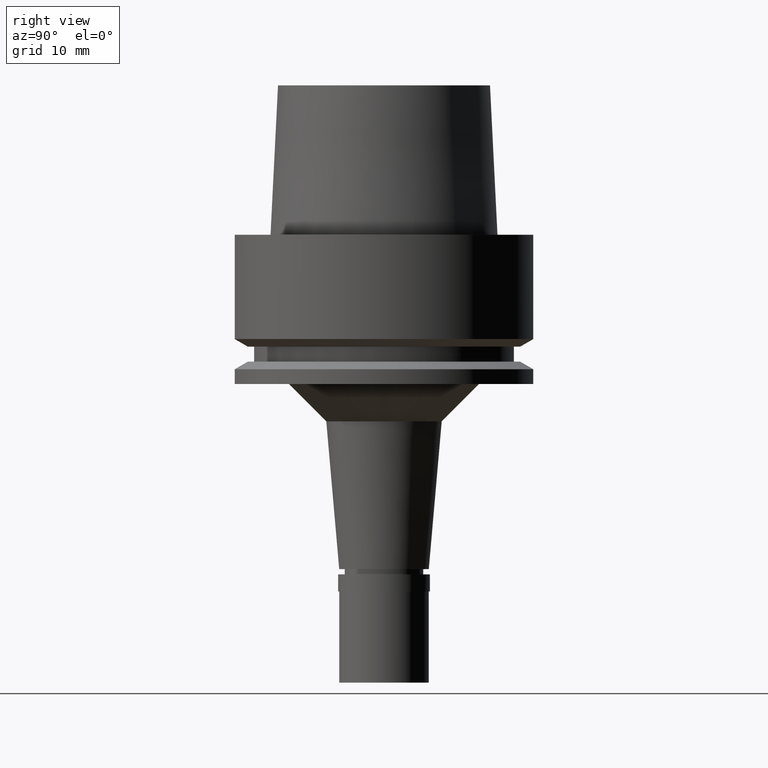
[diagram: clean part render]
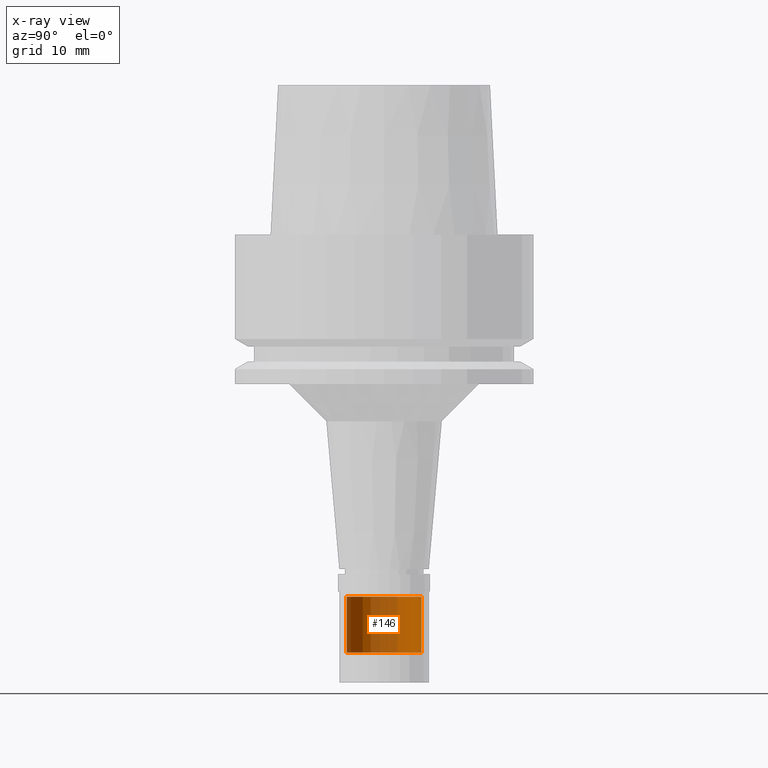
[diagram: x-ray — body ghosted, one internal face saturated and labeled with its STEP entity id]
A machine part, right view, then the same camera in x-ray: the body is ghosted and one INTERNAL B-rep face — a face not visible from any outside direction — is saturated and labeled: STEP entity #146.
In plain terms, the highlighted cylindrical surface (partial cylindrical patch) has radius 5 mm, axis along (0, 0, 1).
Its self-contained STEP definition (entity closure, byte-faithful):
#57 = AXIS2_PLACEMENT_3D ( 'NONE', #1792, #549, #1392 ) ;
#119 = CARTESIAN_POINT ( 'NONE',  ( 0.0000000000000000000, 5.000000000000000000, -48.50000000000000000 ) ) ;
#146 = ADVANCED_FACE ( 'NONE', ( #1336 ), #1731, .T. ) ;
#176 = ORIENTED_EDGE ( 'NONE', *, *, #395, .T. ) ;
#312 = CIRCLE ( 'NONE', #57, 5.000000000000000000 ) ;
#332 = VERTEX_POINT ( 'NONE', #119 ) ;
#395 = EDGE_CURVE ( 'NONE', #1087, #1296, #312, .T. ) ;
#413 = CIRCLE ( 'NONE', #1511, 5.000000000000000000 ) ;
#443 = EDGE_LOOP ( 'NONE', ( #176, #1972, #1769, #1007 ) ) ;
#473 = VERTEX_POINT ( 'NONE', #2471 ) ;
#549 = DIRECTION ( 'NONE',  ( 0.0000000000000000000, 0.0000000000000000000, 1.000000000000000000 ) ) ;
#580 = DIRECTION ( 'NONE',  ( 0.0000000000000000000, 0.0000000000000000000, -1.000000000000000000 ) ) ;
#772 = LINE ( 'NONE', #1212, #1416 ) ;
#782 = CARTESIAN_POINT ( 'NONE',  ( 0.0000000000000000000, 5.000000000000000000, -56.00000000000000000 ) ) ;
#987 = EDGE_CURVE ( 'NONE', #473, #1296, #1640, .T. ) ;
#990 = EDGE_CURVE ( 'NONE', #332, #1087, #772, .T. ) ;
#1007 = ORIENTED_EDGE ( 'NONE', *, *, #990, .T. ) ;
#1087 = VERTEX_POINT ( 'NONE', #782 ) ;
#1103 = CARTESIAN_POINT ( 'NONE',  ( 0.0000000000000000000, -5.000000000000000000, -56.00000000000000000 ) ) ;
#1212 = CARTESIAN_POINT ( 'NONE',  ( 0.0000000000000000000, 5.000000000000000000, -48.50000000000000000 ) ) ;
#1271 = DIRECTION ( 'NONE',  ( 0.0000000000000000000, 0.0000000000000000000, -1.000000000000000000 ) ) ;
#1296 = VERTEX_POINT ( 'NONE', #1103 ) ;
#1336 = FACE_OUTER_BOUND ( 'NONE', #443, .T. ) ;
#1377 = AXIS2_PLACEMENT_3D ( 'NONE', #2559, #2596, #2357 ) ;
#1392 = DIRECTION ( 'NONE',  ( 0.0000000000000000000, 1.000000000000000000, 0.0000000000000000000 ) ) ;
#1416 = VECTOR ( 'NONE', #580, 1000.000000000000000 ) ;
#1511 = AXIS2_PLACEMENT_3D ( 'NONE', #2089, #1271, #2100 ) ;
#1634 = VECTOR ( 'NONE', #2451, 1000.000000000000000 ) ;
#1640 = LINE ( 'NONE', #2264, #1634 ) ;
#1731 = CYLINDRICAL_SURFACE ( 'NONE', #1377, 5.000000000000000000 ) ;
#1769 = ORIENTED_EDGE ( 'NONE', *, *, #2662, .T. ) ;
#1792 = CARTESIAN_POINT ( 'NONE',  ( 0.0000000000000000000, 0.0000000000000000000, -56.00000000000000000 ) ) ;
#1972 = ORIENTED_EDGE ( 'NONE', *, *, #987, .F. ) ;
#2089 = CARTESIAN_POINT ( 'NONE',  ( 0.0000000000000000000, 0.0000000000000000000, -48.50000000000000000 ) ) ;
#2100 = DIRECTION ( 'NONE',  ( 0.0000000000000000000, -1.000000000000000000, 0.0000000000000000000 ) ) ;
#2264 = CARTESIAN_POINT ( 'NONE',  ( 0.0000000000000000000, -5.000000000000000000, -48.50000000000000000 ) ) ;
#2357 = DIRECTION ( 'NONE',  ( 0.0000000000000000000, 1.000000000000000000, 0.0000000000000000000 ) ) ;
#2451 = DIRECTION ( 'NONE',  ( 0.0000000000000000000, 0.0000000000000000000, -1.000000000000000000 ) ) ;
#2471 = CARTESIAN_POINT ( 'NONE',  ( 0.0000000000000000000, -5.000000000000000000, -48.50000000000000000 ) ) ;
#2559 = CARTESIAN_POINT ( 'NONE',  ( 0.0000000000000000000, 0.0000000000000000000, -59.79999999999999716 ) ) ;
#2596 = DIRECTION ( 'NONE',  ( 0.0000000000000000000, 0.0000000000000000000, 1.000000000000000000 ) ) ;
#2662 = EDGE_CURVE ( 'NONE', #473, #332, #413, .T. ) ;